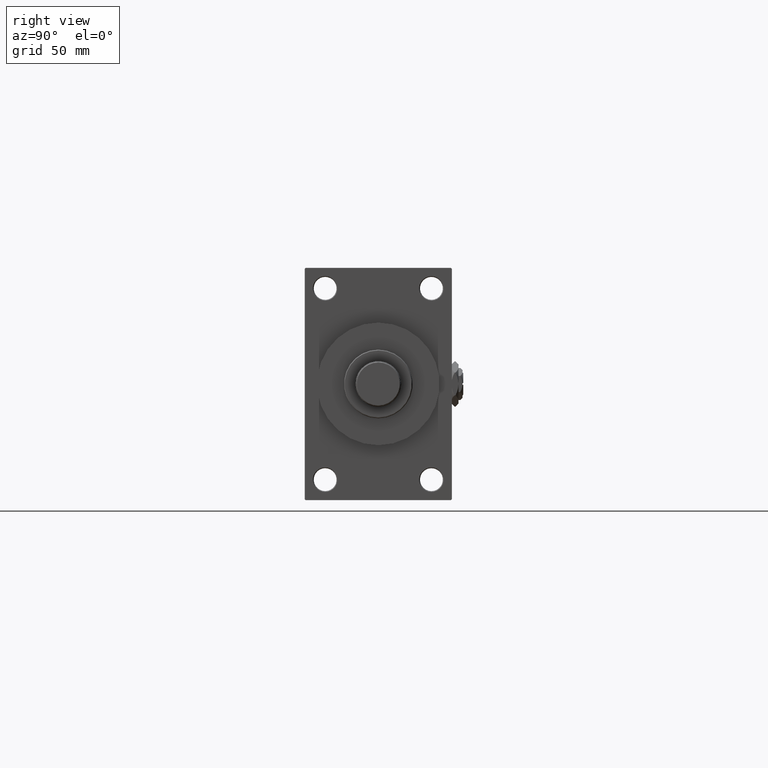
[diagram: clean part render]
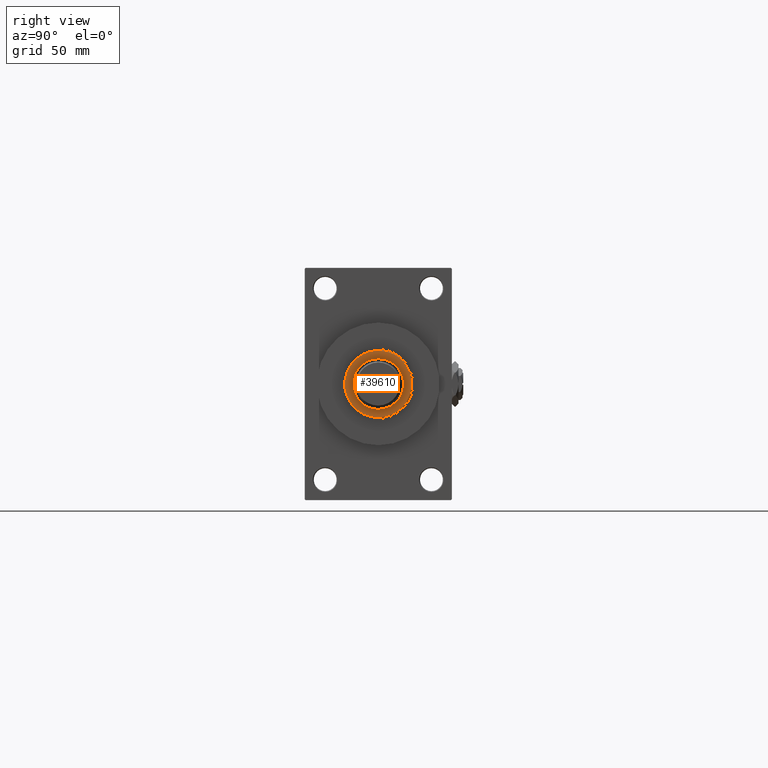
[diagram: same view with one face highlighted and labeled with its STEP entity id]
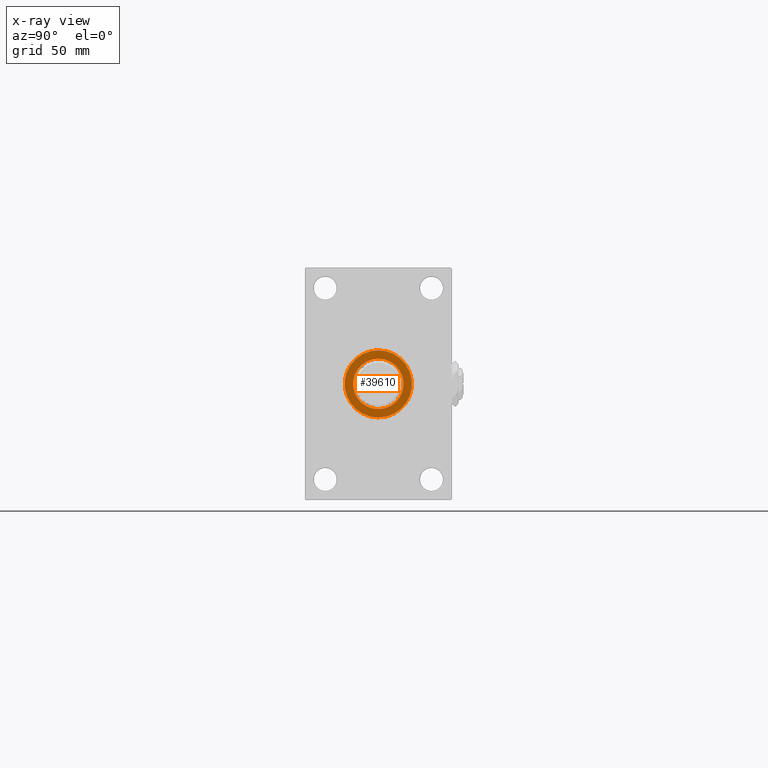
[diagram: x-ray of the same camera — body ghosted, the highlighted face saturated]
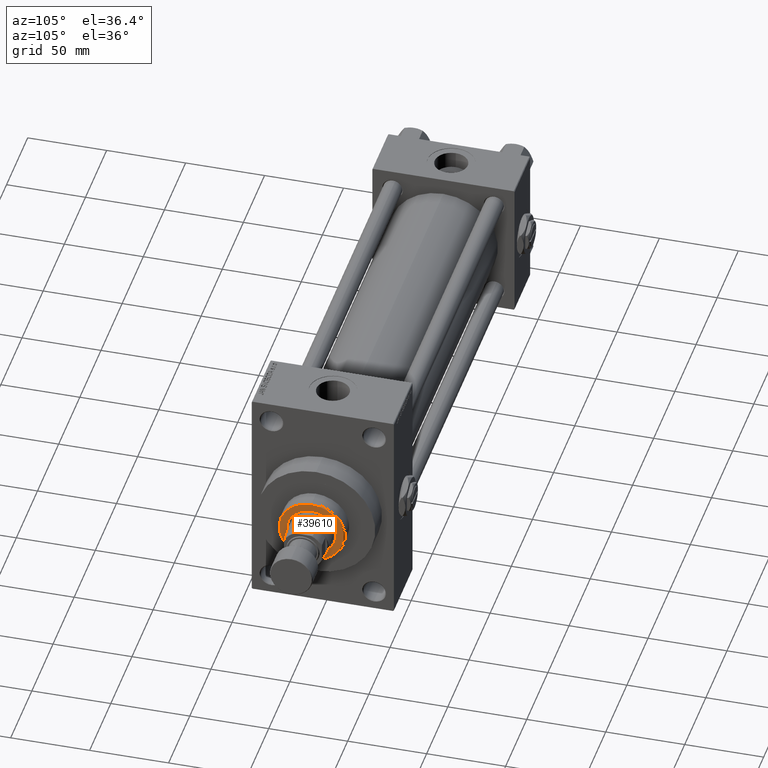
[diagram: same view with one face highlighted and labeled with its STEP entity id]
A machine part, right view. The second image highlights one B-rep face of the part: STEP entity #39610.
The next image is the same camera in x-ray: the body ghosted, the highlighted face saturated — about 0% of this face is hidden behind the body in this view.
A second angle (auxiliary view) of the same face is appended — the face is thin or edge-on in the first view.
In plain terms, the highlighted planar face has unit normal (1, -0, -0).
Its self-contained STEP definition (entity closure, byte-faithful):
#666 = CARTESIAN_POINT ( 'NONE',  ( 0.000000000000000000, 0.000000000000000000, 54.26000000000000512 ) ) ;
#1289 = DIRECTION ( 'NONE',  ( 1.000000000000000000, 0.000000000000000000, -0.000000000000000000 ) ) ;
#1739 = DIRECTION ( 'NONE',  ( 1.000000000000000000, 0.000000000000000000, 0.000000000000000000 ) ) ;
#2020 = EDGE_LOOP ( 'NONE', ( #32002, #19178 ) ) ;
#6530 = EDGE_LOOP ( 'NONE', ( #19404, #39825 ) ) ;
#6849 = AXIS2_PLACEMENT_3D ( 'NONE', #32014, #46834, #1289 ) ;
#7565 = CIRCLE ( 'NONE', #20443, 20.50000000000001776 ) ;
#8396 = AXIS2_PLACEMENT_3D ( 'NONE', #28278, #35578, #47643 ) ;
#8699 = DIRECTION ( 'NONE',  ( 1.000000000000000000, 0.000000000000000000, 0.000000000000000000 ) ) ;
#10959 = EDGE_CURVE ( 'NONE', #48812, #23533, #40330, .T. ) ;
#11552 = AXIS2_PLACEMENT_3D ( 'NONE', #666, #12230, #8699 ) ;
#12230 = DIRECTION ( 'NONE',  ( 0.000000000000000000, 0.000000000000000000, 1.000000000000000000 ) ) ;
#14153 = CIRCLE ( 'NONE', #8396, 15.50000000000000000 ) ;
#14830 = CARTESIAN_POINT ( 'NONE',  ( 15.50000000000000000, 0.000000000000000000, 54.26000000000000512 ) ) ;
#15590 = EDGE_CURVE ( 'NONE', #30940, #34668, #21250, .T. ) ;
#17267 = DIRECTION ( 'NONE',  ( 0.000000000000000000, 0.000000000000000000, 1.000000000000000000 ) ) ;
#18623 = AXIS2_PLACEMENT_3D ( 'NONE', #25146, #40510, #1739 ) ;
#19178 = ORIENTED_EDGE ( 'NONE', *, *, #37911, .T. ) ;
#19404 = ORIENTED_EDGE ( 'NONE', *, *, #10959, .F. ) ;
#20443 = AXIS2_PLACEMENT_3D ( 'NONE', #35658, #17267, #32142 ) ;
#20695 = EDGE_CURVE ( 'NONE', #23533, #48812, #14153, .T. ) ;
#21250 = CIRCLE ( 'NONE', #11552, 20.50000000000001776 ) ;
#23533 = VERTEX_POINT ( 'NONE', #44993 ) ;
#25146 = CARTESIAN_POINT ( 'NONE',  ( 0.000000000000000000, 0.000000000000000000, 54.26000000000000512 ) ) ;
#28278 = CARTESIAN_POINT ( 'NONE',  ( 0.000000000000000000, 0.000000000000000000, 54.26000000000000512 ) ) ;
#30940 = VERTEX_POINT ( 'NONE', #35529 ) ;
#31739 = PLANE ( 'NONE',  #6849 ) ;
#32002 = ORIENTED_EDGE ( 'NONE', *, *, #15590, .T. ) ;
#32014 = CARTESIAN_POINT ( 'NONE',  ( 0.000000000000000000, 0.000000000000000000, 54.26000000000000512 ) ) ;
#32142 = DIRECTION ( 'NONE',  ( 1.000000000000000000, 0.000000000000000000, 0.000000000000000000 ) ) ;
#34668 = VERTEX_POINT ( 'NONE', #41381 ) ;
#35525 = FACE_BOUND ( 'NONE', #6530, .T. ) ;
#35529 = CARTESIAN_POINT ( 'NONE',  ( -20.50000000000001776, 0.000000000000000000, 54.26000000000000512 ) ) ;
#35578 = DIRECTION ( 'NONE',  ( 0.000000000000000000, 0.000000000000000000, 1.000000000000000000 ) ) ;
#35658 = CARTESIAN_POINT ( 'NONE',  ( 0.000000000000000000, 0.000000000000000000, 54.26000000000000512 ) ) ;
#37911 = EDGE_CURVE ( 'NONE', #34668, #30940, #7565, .T. ) ;
#39610 = ADVANCED_FACE ( 'NONE', ( #35525, #42593 ), #31739, .T. ) ;
#39825 = ORIENTED_EDGE ( 'NONE', *, *, #20695, .F. ) ;
#40330 = CIRCLE ( 'NONE', #18623, 15.50000000000000000 ) ;
#40510 = DIRECTION ( 'NONE',  ( 0.000000000000000000, 0.000000000000000000, 1.000000000000000000 ) ) ;
#41381 = CARTESIAN_POINT ( 'NONE',  ( 20.50000000000001776, 2.541142108230759057E-15, 54.26000000000000512 ) ) ;
#42593 = FACE_OUTER_BOUND ( 'NONE', #2020, .T. ) ;
#44993 = CARTESIAN_POINT ( 'NONE',  ( -15.50000000000000000, 1.898202538678397557E-15, 54.26000000000000512 ) ) ;
#46834 = DIRECTION ( 'NONE',  ( 0.000000000000000000, 0.000000000000000000, 1.000000000000000000 ) ) ;
#47643 = DIRECTION ( 'NONE',  ( 1.000000000000000000, 0.000000000000000000, 0.000000000000000000 ) ) ;
#48812 = VERTEX_POINT ( 'NONE', #14830 ) ;